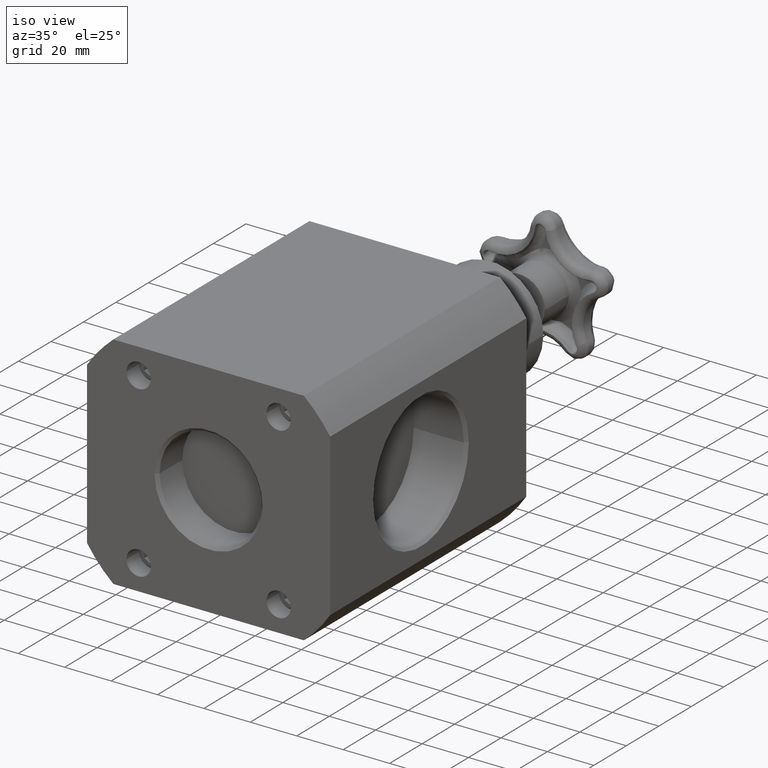
[diagram: clean part render]
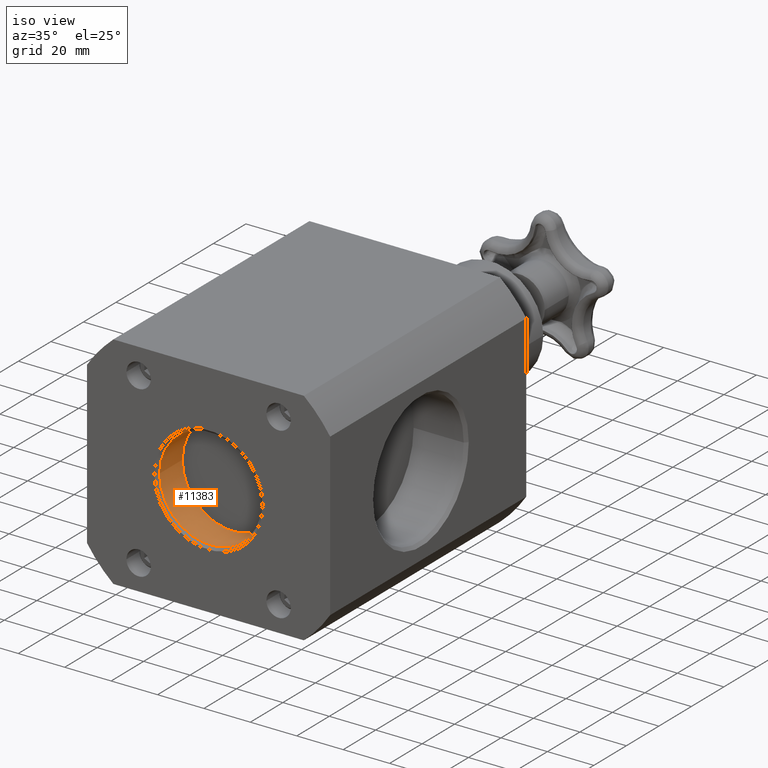
[diagram: same view with one face highlighted and labeled with its STEP entity id]
A machine part, iso view. The second image highlights one B-rep face of the part: STEP entity #11383.
In plain terms, the highlighted cylindrical surface (bore or boss wall) has radius 22.0266 mm, axis along (-0, 1, 0).
Its self-contained STEP definition (entity closure, byte-faithful):
#79=CARTESIAN_POINT('',(-0.867187500000000,0.600000000000000,1.022955E-016));
#80=VERTEX_POINT('',#79);
#81=CARTESIAN_POINT('',(-2.997602E-016,0.600000000000000,1.720464E-016));
#82=DIRECTION('',(0.0,1.0,0.0));
#83=DIRECTION('',(-1.0,0.0,0.0));
#84=AXIS2_PLACEMENT_3D('',#81,#82,#83);
#85=CIRCLE('',#84,0.867187500000000);
#86=EDGE_CURVE('',#80,#80,#85,.T.);
#11349=CARTESIAN_POINT('',(-0.867187500000000,0.050000000000000,5.078613E-017));
#11350=VERTEX_POINT('',#11349);
#11351=CARTESIAN_POINT('',(-2.498002E-017,0.050000000000000,1.433720E-017));
#11352=DIRECTION('',(0.0,1.0,0.0));
#11353=DIRECTION('',(1.0,0.0,0.0));
#11354=AXIS2_PLACEMENT_3D('',#11351,#11352,#11353);
#11355=CIRCLE('',#11354,0.867187500000000);
#11356=EDGE_CURVE('',#11350,#11350,#11355,.T.);
#11372=CARTESIAN_POINT('',(-1.498801E-016,0.300000000000000,8.602320E-017));
#11373=DIRECTION('',(-4.996004E-016,1.0,2.867440E-016));
#11374=DIRECTION('',(-1.0,0.0,0.0));
#11375=AXIS2_PLACEMENT_3D('',#11372,#11373,#11374);
#11376=CYLINDRICAL_SURFACE('',#11375,0.867187500000000);
#11377=ORIENTED_EDGE('',*,*,#86,.T.);
#11378=EDGE_LOOP('',(#11377));
#11379=FACE_OUTER_BOUND('',#11378,.T.);
#11380=ORIENTED_EDGE('',*,*,#11356,.F.);
#11381=EDGE_LOOP('',(#11380));
#11382=FACE_BOUND('',#11381,.T.);
#11383=ADVANCED_FACE('',(#11379,#11382),#11376,.F.);